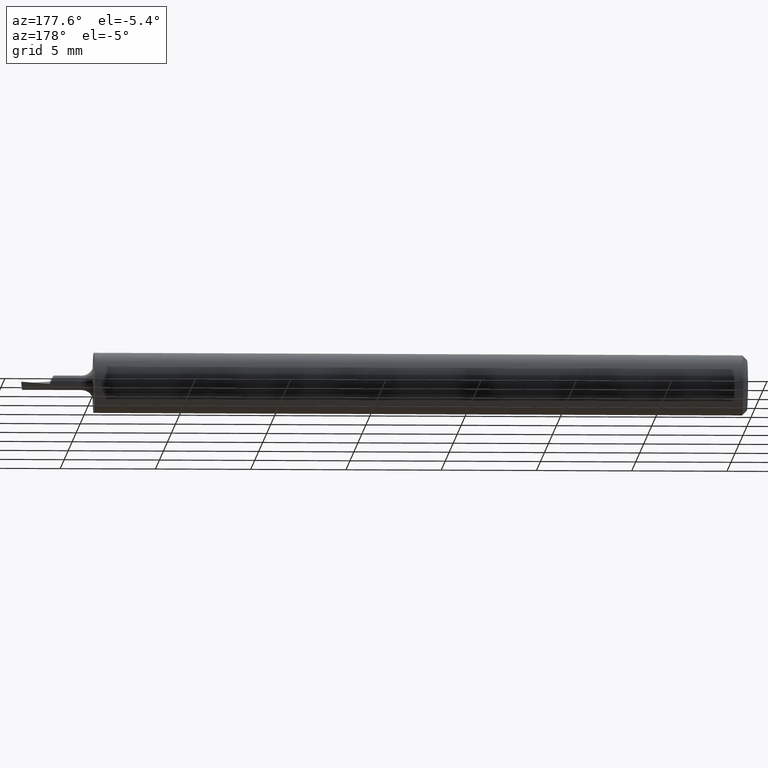
[diagram: clean part render]
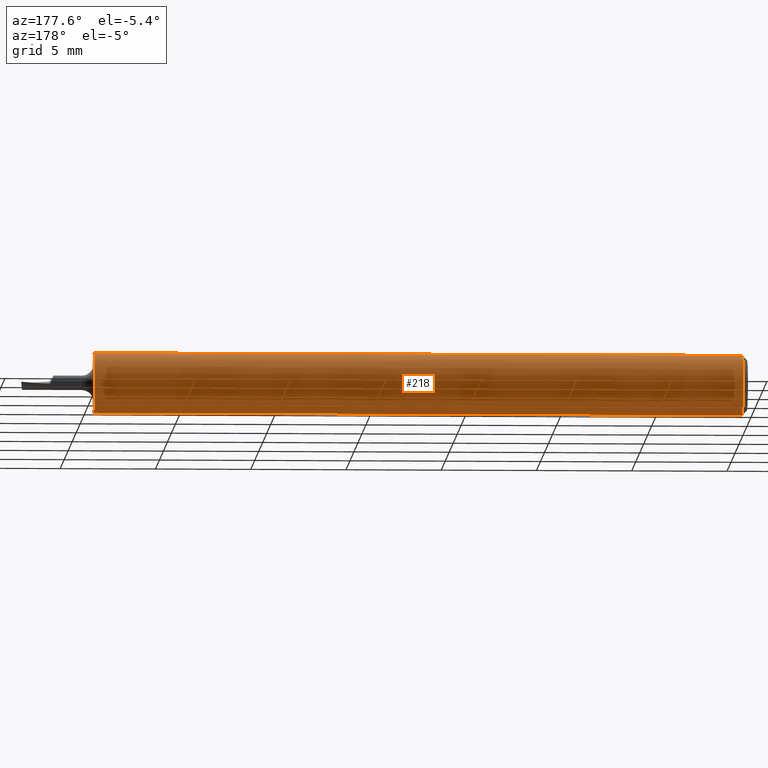
[diagram: same view with one face highlighted and labeled with its STEP entity id]
A machine part, auxiliary view. The second image highlights one B-rep face of the part: STEP entity #218.
In plain terms, the highlighted cylindrical surface (edge-blend (fillet) strip) has radius 1.5837 mm, axis along (-1, -0, -0).
Its self-contained STEP definition (entity closure, byte-faithful):
#19 = EDGE_CURVE ( 'NONE', #495, #297, #685, .T. ) ;
#36 = CARTESIAN_POINT ( 'NONE',  ( 1.350000000000000311, 7.635672792683743590E-18, -0.06234999999999997489 ) ) ;
#75 = LINE ( 'NONE', #609, #572 ) ;
#76 = EDGE_CURVE ( 'NONE', #86, #150, #298, .T. ) ;
#86 = VERTEX_POINT ( 'NONE', #36 ) ;
#107 = VECTOR ( 'NONE', #510, 39.37007874015748143 ) ;
#150 = VERTEX_POINT ( 'NONE', #167 ) ;
#167 = CARTESIAN_POINT ( 'NONE',  ( 1.350000000000000311, 0.000000000000000000, 0.06234999999999997489 ) ) ;
#195 = ORIENTED_EDGE ( 'NONE', *, *, #76, .F. ) ;
#200 = ORIENTED_EDGE ( 'NONE', *, *, #422, .F. ) ;
#203 = DIRECTION ( 'NONE',  ( 1.000000000000000000, 0.000000000000000000, 0.000000000000000000 ) ) ;
#218 = ADVANCED_FACE ( 'NONE', ( #729 ), #445, .T. ) ;
#297 = VERTEX_POINT ( 'NONE', #537 ) ;
#298 = CIRCLE ( 'NONE', #406, 0.06234999999999997489 ) ;
#317 = DIRECTION ( 'NONE',  ( 0.000000000000000000, 0.000000000000000000, -1.000000000000000000 ) ) ;
#369 = CARTESIAN_POINT ( 'NONE',  ( 0.000000000000000000, 7.635672792683743590E-18, -0.06234999999999997489 ) ) ;
#394 = DIRECTION ( 'NONE',  ( 0.000000000000000000, 0.000000000000000000, 1.000000000000000000 ) ) ;
#406 = AXIS2_PLACEMENT_3D ( 'NONE', #663, #203, #317 ) ;
#422 = EDGE_CURVE ( 'NONE', #150, #495, #75, .T. ) ;
#433 = DIRECTION ( 'NONE',  ( -1.000000000000000000, -0.000000000000000000, -0.000000000000000000 ) ) ;
#445 = CYLINDRICAL_SURFACE ( 'NONE', #482, 0.06234999999999997489 ) ;
#448 = EDGE_CURVE ( 'NONE', #86, #297, #497, .T. ) ;
#457 = CARTESIAN_POINT ( 'NONE',  ( 0.000000000000000000, 0.000000000000000000, 0.000000000000000000 ) ) ;
#482 = AXIS2_PLACEMENT_3D ( 'NONE', #457, #673, #677 ) ;
#495 = VERTEX_POINT ( 'NONE', #712 ) ;
#497 = LINE ( 'NONE', #369, #107 ) ;
#510 = DIRECTION ( 'NONE',  ( -1.000000000000000000, -0.000000000000000000, -0.000000000000000000 ) ) ;
#537 = CARTESIAN_POINT ( 'NONE',  ( 0.01000000000000000021, 7.635672792683748212E-18, -0.06235000000000000264 ) ) ;
#561 = AXIS2_PLACEMENT_3D ( 'NONE', #678, #577, #394 ) ;
#572 = VECTOR ( 'NONE', #433, 39.37007874015748143 ) ;
#577 = DIRECTION ( 'NONE',  ( -1.000000000000000000, -0.000000000000000000, -0.000000000000000000 ) ) ;
#609 = CARTESIAN_POINT ( 'NONE',  ( 0.000000000000000000, 0.000000000000000000, 0.06234999999999997489 ) ) ;
#659 = ORIENTED_EDGE ( 'NONE', *, *, #448, .T. ) ;
#663 = CARTESIAN_POINT ( 'NONE',  ( 1.350000000000000311, 0.000000000000000000, 0.000000000000000000 ) ) ;
#673 = DIRECTION ( 'NONE',  ( -1.000000000000000000, -0.000000000000000000, -0.000000000000000000 ) ) ;
#677 = DIRECTION ( 'NONE',  ( 0.000000000000000000, 0.000000000000000000, 1.000000000000000000 ) ) ;
#678 = CARTESIAN_POINT ( 'NONE',  ( 0.01000000000000000021, 0.000000000000000000, 0.000000000000000000 ) ) ;
#685 = CIRCLE ( 'NONE', #561, 0.06235000000000000264 ) ;
#712 = CARTESIAN_POINT ( 'NONE',  ( 0.01000000000000000021, 0.000000000000000000, 0.06235000000000000264 ) ) ;
#724 = EDGE_LOOP ( 'NONE', ( #195, #659, #747, #200 ) ) ;
#729 = FACE_OUTER_BOUND ( 'NONE', #724, .T. ) ;
#747 = ORIENTED_EDGE ( 'NONE', *, *, #19, .F. ) ;